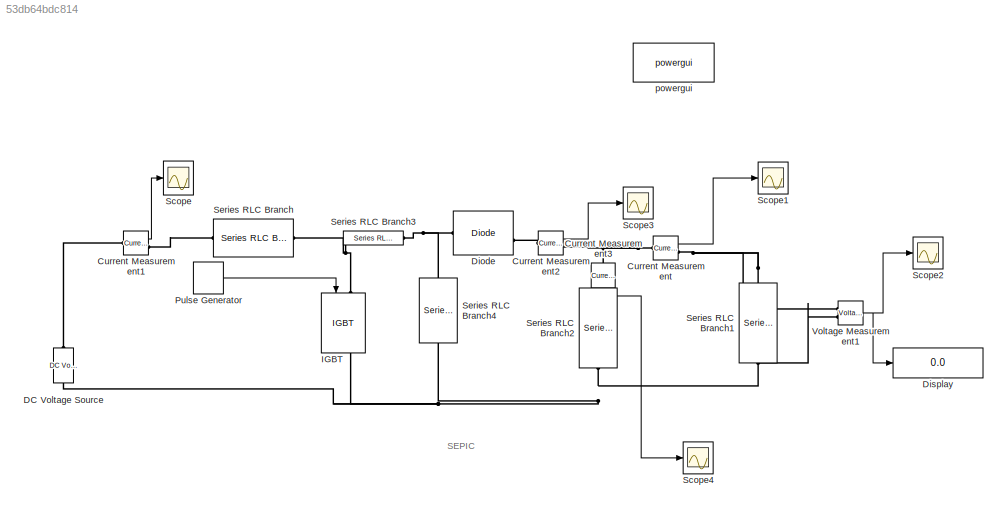
MODEL slx_53db64bdc814
KIND model
CONFIG AbsTol = auto
CONFIG EnableMultiTasking = off
CONFIG FixedStep = auto
CONFIG MaxStep = auto
CONFIG MinStep = auto
CONFIG RelTol = 1e-3
CONFIG SampleTimeConstraint = Unconstrained
CONFIG SolverName = VariableStepAuto
CONFIG StartTime = 0.0
CONFIG StopTime = 10
BLOCK [Reference] Current Measurement  REF=spsCurrentMeasurementLib/Current Measurement
  Ports = [0, 1, 0, 0, 0, 1, 1]
  SourceBlock = spsCurrentMeasurementLib/Current Measurement
  SourceProductBaseCode = PS
  SourceType = Current Measurement
  UserDataPersistent = on
BLOCK [Reference] Current Measurement1  REF=spsCurrentMeasurementLib/Current Measurement
  Ports = [0, 1, 0, 0, 0, 1, 1]
  SourceBlock = spsCurrentMeasurementLib/Current Measurement
  SourceProductBaseCode = PS
  SourceType = Current Measurement
  UserDataPersistent = on
BLOCK [Reference] Current Measurement2  REF=spsCurrentMeasurementLib/Current Measurement
  Ports = [0, 1, 0, 0, 0, 1, 1]
  SourceBlock = spsCurrentMeasurementLib/Current Measurement
  SourceProductBaseCode = PS
  SourceType = Current Measurement
  UserDataPersistent = on
BLOCK [Reference] Current Measurement3  REF=spsCurrentMeasurementLib/Current Measurement
  NameLocation = left
  Ports = [0, 1, 0, 0, 0, 1, 1]
  SourceBlock = spsCurrentMeasurementLib/Current Measurement
  SourceProductBaseCode = PS
  SourceType = Current Measurement
  UserDataPersistent = on
BLOCK [Reference] DC Voltage Source  REF=spsDCVoltageSourceLib/DC Voltage Source
  Ports = [0, 0, 0, 0, 0, 1, 1]
  SourceBlock = spsDCVoltageSourceLib/DC Voltage Source
  SourceProductBaseCode = PS
  SourceType = DC Voltage Source
BLOCK [Reference] Diode  REF=spsDiodeLib/Diode
  Ports = [0, 1, 0, 0, 0, 1, 1]
  SourceBlock = spsDiodeLib/Diode
  SourceProductBaseCode = PS
  SourceType = Diode
BLOCK [Display] Display
  Decimation = 1
  Ports = [1]
BLOCK [Reference] IGBT  REF=spsIGBTLib/IGBT
  NameLocation = left
  Ports = [1, 1, 0, 0, 0, 1, 1]
  SourceBlock = spsIGBTLib/IGBT
  SourceProductBaseCode = PS
  SourceType = IGBT
BLOCK [DiscretePulseGenerator] Pulse Generator
  Period = 1/10000
  Ports = [0, 1]
  PulseType = Time based
  PulseWidth = 80
BLOCK [Scope] Scope
  Floating = off
  NumInputPorts = 1
  Ports = [1]
  ScopeSpecificationString = Simulink.scopes.TimeScopeBlockCfg('CurrentConfiguration', extmgr.ConfigurationSet(extmgr.Configuration('Core','General UI',true),extmgr.Configuration('Core','Source UI',true),extmgr.Configuration('Sources','WiredSimulink',true,'DataLoggingVariableName','ScopeData1'),extmgr.Configuration('Visuals','Time Domain',true,'SerializedDisplays',{struct('MinYLimReal','0.9445','MaxYLimReal','1.0172','YLabelR...<+1388ch>
BLOCK [Scope] Scope1
  Floating = off
  NumInputPorts = 1
  Ports = [1]
  ScopeSpecificationString = Simulink.scopes.TimeScopeBlockCfg('CurrentConfiguration', extmgr.ConfigurationSet(extmgr.Configuration('Core','General UI',true),extmgr.Configuration('Core','Source UI',true),extmgr.Configuration('Sources','WiredSimulink',true,'DataLoggingVariableName','ScopeData2'),extmgr.Configuration('Visuals','Time Domain',true,'SerializedDisplays',{struct('MinYLimReal','0.05818','MaxYLimReal','1.79913','YLabe...<+1428ch>
BLOCK [Scope] Scope2
  Floating = off
  NumInputPorts = 1
  Ports = [1]
  ScopeSpecificationString = Simulink.scopes.TimeScopeBlockCfg('CurrentConfiguration', extmgr.ConfigurationSet(extmgr.Configuration('Core','General UI',true),extmgr.Configuration('Core','Source UI',true),extmgr.Configuration('Sources','WiredSimulink',true,'DataLoggingVariableName','ScopeData3'),extmgr.Configuration('Visuals','Time Domain',true,'SerializedDisplays',{struct('MinYLimReal','-12.12978','MaxYLimReal','109.14843','Y...<+1444ch>
BLOCK [Scope] Scope3
  Floating = off
  NumInputPorts = 1
  Ports = [1]
  ScopeSpecificationString = Simulink.scopes.TimeScopeBlockCfg('CurrentConfiguration', extmgr.ConfigurationSet(extmgr.Configuration('Core','General UI',true),extmgr.Configuration('Core','Source UI',true),extmgr.Configuration('Sources','WiredSimulink',true,'DataLoggingVariableName','ScopeData4'),extmgr.Configuration('Visuals','Time Domain',true,'SerializedDisplays',{struct('MinYLimReal','-0.72593','MaxYLimReal','5.7918','YLabe...<+1394ch>
BLOCK [Scope] Scope4
  Floating = off
  NumInputPorts = 1
  Ports = [1]
  ScopeSpecificationString = Simulink.scopes.TimeScopeBlockCfg('CurrentConfiguration', extmgr.ConfigurationSet(extmgr.Configuration('Core','General UI',true),extmgr.Configuration('Core','Source UI',true),extmgr.Configuration('Sources','WiredSimulink',true),extmgr.Configuration('Visuals','Time Domain',true,'SerializedDisplays',{struct('MinYLimReal','-1.74581','MaxYLimReal','4.83602','YLabelReal','','MinYLimMag','0.00000','MaxY...<+1359ch>
BLOCK [Reference] Series RLC Branch  REF=spsSeriesRLCBranchLib/Series RLC Branch
  Ports = [0, 0, 0, 0, 0, 1, 1]
  SourceBlock = spsSeriesRLCBranchLib/Series RLC Branch
  SourceProductBaseCode = PS
  SourceType = Series RLC Branch
BLOCK [Reference] Series RLC Branch1  REF=spsSeriesRLCBranchLib/Series RLC Branch
  NameLocation = left
  Ports = [0, 0, 0, 0, 0, 1, 1]
  SourceBlock = spsSeriesRLCBranchLib/Series RLC Branch
  SourceProductBaseCode = PS
  SourceType = Series RLC Branch
BLOCK [Reference] Series RLC Branch2  REF=spsSeriesRLCBranchLib/Series RLC Branch
  NameLocation = left
  Ports = [0, 0, 0, 0, 0, 1, 1]
  SourceBlock = spsSeriesRLCBranchLib/Series RLC Branch
  SourceProductBaseCode = PS
  SourceType = Series RLC Branch
BLOCK [Reference] Series RLC Branch3  REF=spsSeriesRLCBranchLib/Series RLC Branch
  Ports = [0, 0, 0, 0, 0, 1, 1]
  SourceBlock = spsSeriesRLCBranchLib/Series RLC Branch
  SourceProductBaseCode = PS
  SourceType = Series RLC Branch
BLOCK [Reference] Series RLC Branch4  REF=spsSeriesRLCBranchLib/Series RLC Branch
  NameLocation = left
  Ports = [0, 0, 0, 0, 0, 1, 1]
  SourceBlock = spsSeriesRLCBranchLib/Series RLC Branch
  SourceProductBaseCode = PS
  SourceType = Series RLC Branch
BLOCK [Reference] Voltage Measurement1  REF=spsVoltageMeasurementLib/Voltage Measurement
  Ports = [0, 1, 0, 0, 0, 2]
  SourceBlock = spsVoltageMeasurementLib/Voltage Measurement
  SourceProductBaseCode = PS
  SourceType = Voltage Measurement
  UserDataPersistent = on
BLOCK [Reference] powergui  REF=spspowerguiLib/powergui
  Ports = []
  Priority = 1
  SourceBlock = spspowerguiLib/powergui
  SourceProductBaseCode = PS
  SourceType = PSB option menu block
ANNOTATION (root): SEPIC
LINE Current Measurement1:1 -> Scope:1
LINE Current Measurement2:1 -> Scope3:1
LINE Current Measurement3:1 -> Scope4:1
LINE Current Measurement:1 -> Scope1:1
LINE Pulse Generator:1 -> IGBT:1
NET Voltage Measurement1:1 -> Display:1, Scope2:1
PLINE Current Measurement1:LConn1 -- DC Voltage Source:RConn1
PLINE Current Measurement1:RConn1 -- Series RLC Branch:LConn1
PLINE Current Measurement2:LConn1 -- Diode:RConn1
PNET net1: Current Measurement2:RConn1 -- Current Measurement3:LConn1 -- Current Measurement:LConn1
PLINE Current Measurement3:RConn1 -- Series RLC Branch2:LConn1
PNET net2: Current Measurement:RConn1 -- Series RLC Branch1:LConn1 -- Voltage Measurement1:LConn1
PNET net3: DC Voltage Source:LConn1 -- IGBT:RConn1 -- Series RLC Branch1:RConn1 -- Series RLC Branch2:RConn1 -- Series RLC Branch4:RConn1 -- Voltage Measurement1:LConn2
PNET net4: Diode:LConn1 -- Series RLC Branch3:RConn1 -- Series RLC Branch4:LConn1
PNET net5: IGBT:LConn1 -- Series RLC Branch3:LConn1 -- Series RLC Branch:RConn1
note: NET lines group one-source signal fan-out (src -> all destinations, sorted); 1:1 wires keep LINE; PNET lines group multi-terminal physical nets as a canonical sorted terminal list (undirected conserving connections); 2-terminal nets keep the pairwise PLINE form
